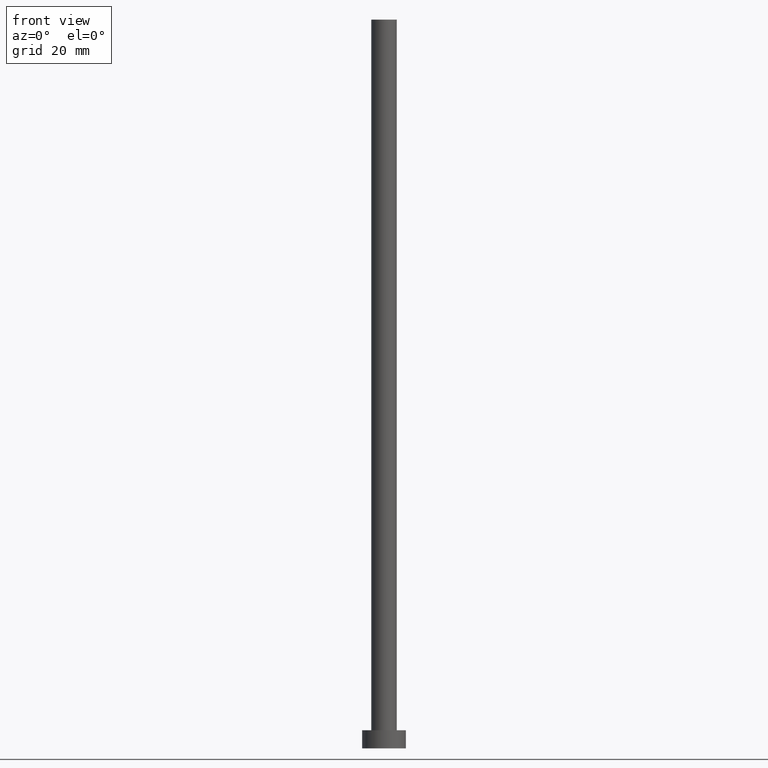
[diagram: clean part render]
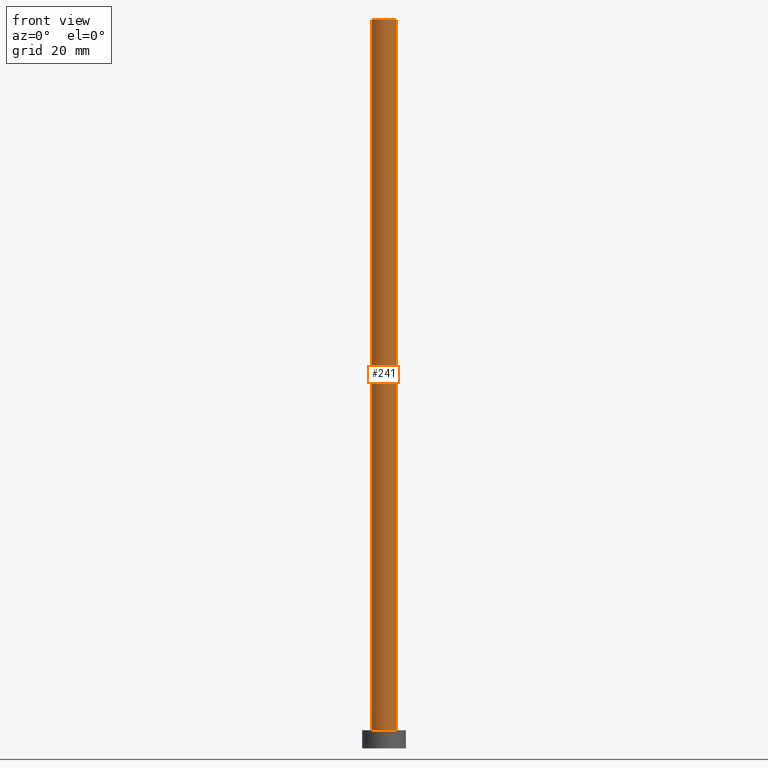
[diagram: same view with one face highlighted and labeled with its STEP entity id]
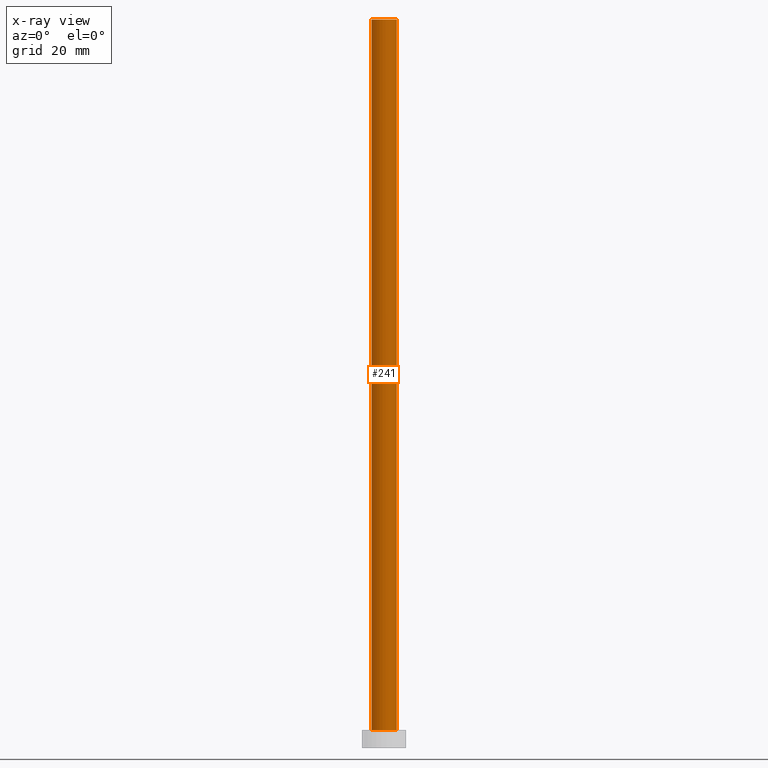
[diagram: x-ray of the same camera — body ghosted, the highlighted face saturated]
A machine part, front view. The second image highlights one B-rep face of the part: STEP entity #241.
The next image is the same camera in x-ray: the body ghosted, the highlighted face saturated — about 0% of this face is hidden behind the body in this view.
In plain terms, the highlighted cylindrical surface (edge-blend (fillet) strip) has radius 3.5 mm, axis along (-0, -0, -1).
Its self-contained STEP definition (entity closure, byte-faithful):
#1 = AXIS2_PLACEMENT_3D ( 'NONE', #213, #15, #209 ) ;
#4 = LINE ( 'NONE', #201, #145 ) ;
#9 = DIRECTION ( 'NONE',  ( -0.000000000000000000, -0.000000000000000000, -1.000000000000000000 ) ) ;
#11 = CARTESIAN_POINT ( 'NONE',  ( 0.000000000000000000, 0.000000000000000000, 200.0000000000000000 ) ) ;
#13 = AXIS2_PLACEMENT_3D ( 'NONE', #175, #193, #136 ) ;
#15 = DIRECTION ( 'NONE',  ( -0.000000000000000000, -0.000000000000000000, -1.000000000000000000 ) ) ;
#25 = DIRECTION ( 'NONE',  ( -0.000000000000000000, -0.000000000000000000, -1.000000000000000000 ) ) ;
#31 = CARTESIAN_POINT ( 'NONE',  ( -3.500000000000000000, 0.000000000000000000, 200.0000000000000000 ) ) ;
#47 = CARTESIAN_POINT ( 'NONE',  ( 3.500000000000000000, 4.286263797015736595E-16, 200.0000000000000000 ) ) ;
#49 = EDGE_CURVE ( 'NONE', #233, #147, #172, .T. ) ;
#54 = FACE_OUTER_BOUND ( 'NONE', #252, .T. ) ;
#59 = ORIENTED_EDGE ( 'NONE', *, *, #251, .T. ) ;
#61 = EDGE_CURVE ( 'NONE', #65, #163, #96, .T. ) ;
#65 = VERTEX_POINT ( 'NONE', #113 ) ;
#69 = CYLINDRICAL_SURFACE ( 'NONE', #1, 3.500000000000000000 ) ;
#75 = CARTESIAN_POINT ( 'NONE',  ( -3.500000000000000000, 0.000000000000000000, 200.0000000000000000 ) ) ;
#81 = EDGE_CURVE ( 'NONE', #147, #163, #4, .T. ) ;
#83 = ORIENTED_EDGE ( 'NONE', *, *, #49, .F. ) ;
#89 = DIRECTION ( 'NONE',  ( 1.000000000000000000, 0.000000000000000000, 0.000000000000000000 ) ) ;
#96 = CIRCLE ( 'NONE', #13, 3.500000000000000000 ) ;
#100 = ORIENTED_EDGE ( 'NONE', *, *, #61, .T. ) ;
#112 = AXIS2_PLACEMENT_3D ( 'NONE', #11, #115, #89 ) ;
#113 = CARTESIAN_POINT ( 'NONE',  ( -3.500000000000000000, 0.000000000000000000, 5.000000000000000000 ) ) ;
#115 = DIRECTION ( 'NONE',  ( 0.000000000000000000, 0.000000000000000000, 1.000000000000000000 ) ) ;
#125 = ORIENTED_EDGE ( 'NONE', *, *, #81, .F. ) ;
#128 = CARTESIAN_POINT ( 'NONE',  ( 3.500000000000000000, 4.286263797015736595E-16, 5.000000000000000000 ) ) ;
#136 = DIRECTION ( 'NONE',  ( 1.000000000000000000, 0.000000000000000000, 0.000000000000000000 ) ) ;
#145 = VECTOR ( 'NONE', #25, 1000.000000000000000 ) ;
#147 = VERTEX_POINT ( 'NONE', #47 ) ;
#156 = LINE ( 'NONE', #31, #253 ) ;
#163 = VERTEX_POINT ( 'NONE', #128 ) ;
#172 = CIRCLE ( 'NONE', #112, 3.500000000000000000 ) ;
#175 = CARTESIAN_POINT ( 'NONE',  ( 0.000000000000000000, 0.000000000000000000, 5.000000000000000000 ) ) ;
#193 = DIRECTION ( 'NONE',  ( 0.000000000000000000, 0.000000000000000000, 1.000000000000000000 ) ) ;
#201 = CARTESIAN_POINT ( 'NONE',  ( 3.500000000000000000, 4.286263797015736595E-16, 200.0000000000000000 ) ) ;
#209 = DIRECTION ( 'NONE',  ( -1.000000000000000000, 0.000000000000000000, 0.000000000000000000 ) ) ;
#213 = CARTESIAN_POINT ( 'NONE',  ( 0.000000000000000000, 0.000000000000000000, 200.0000000000000000 ) ) ;
#233 = VERTEX_POINT ( 'NONE', #75 ) ;
#241 = ADVANCED_FACE ( 'NONE', ( #54 ), #69, .T. ) ;
#251 = EDGE_CURVE ( 'NONE', #233, #65, #156, .T. ) ;
#252 = EDGE_LOOP ( 'NONE', ( #125, #83, #59, #100 ) ) ;
#253 = VECTOR ( 'NONE', #9, 1000.000000000000000 ) ;